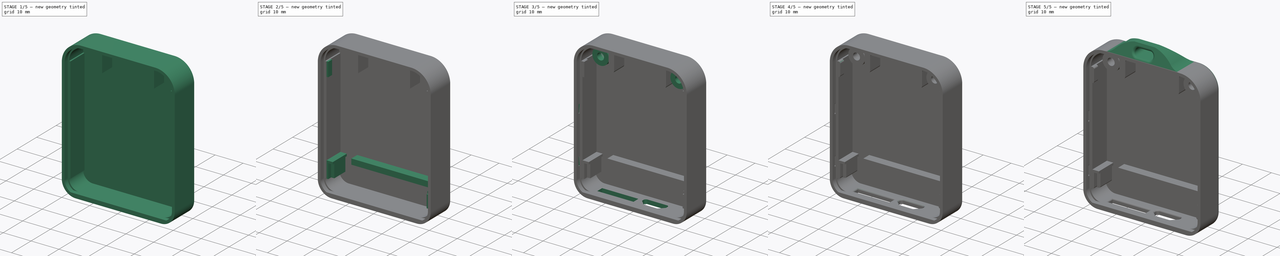
[diagram: build sequence overview — one tinted view per stage of 5, left to right]
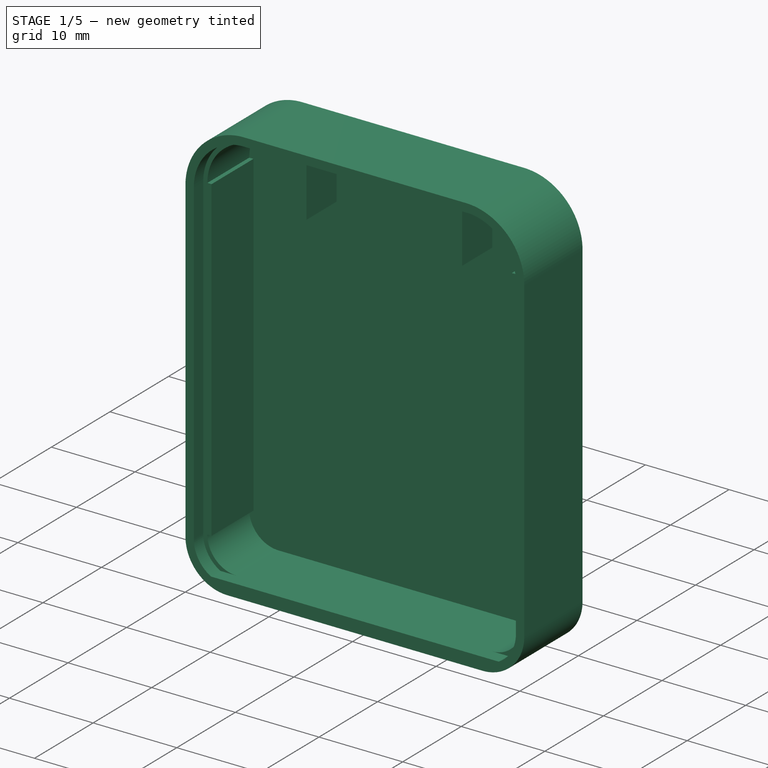
[diagram: stage 1 of 5 — iso view after this stage's code; geometry added in this stage tinted green]
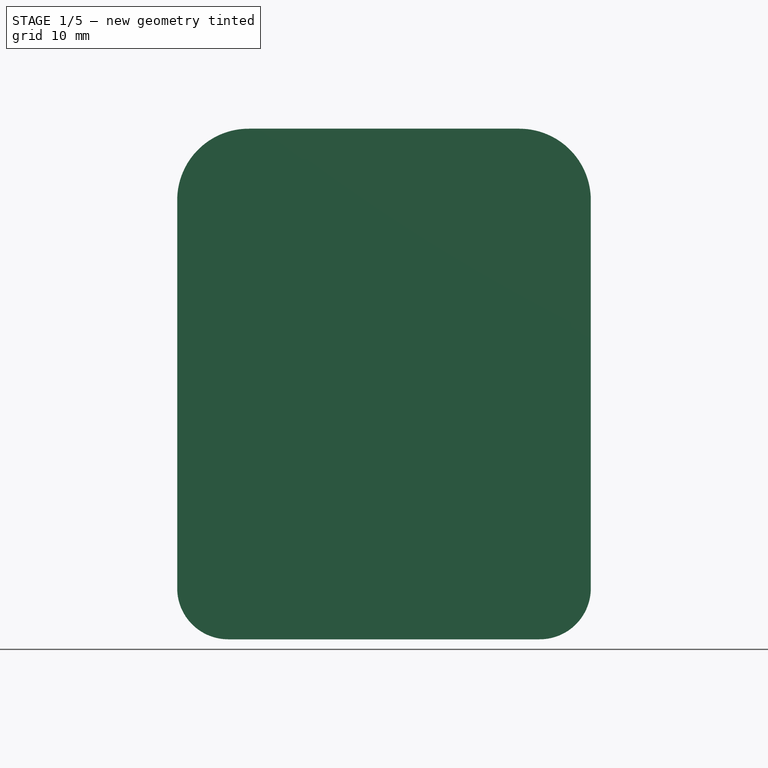
[diagram: stage 1 of 5 — front view after this stage's code; geometry added in this stage tinted green]
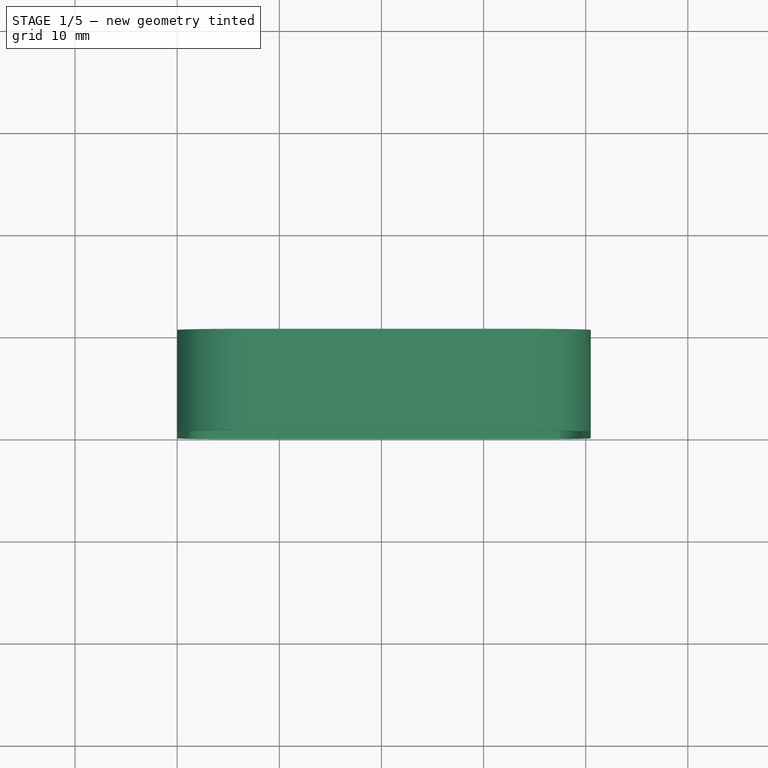
[diagram: stage 1 of 5 — top view after this stage's code; geometry added in this stage tinted green]
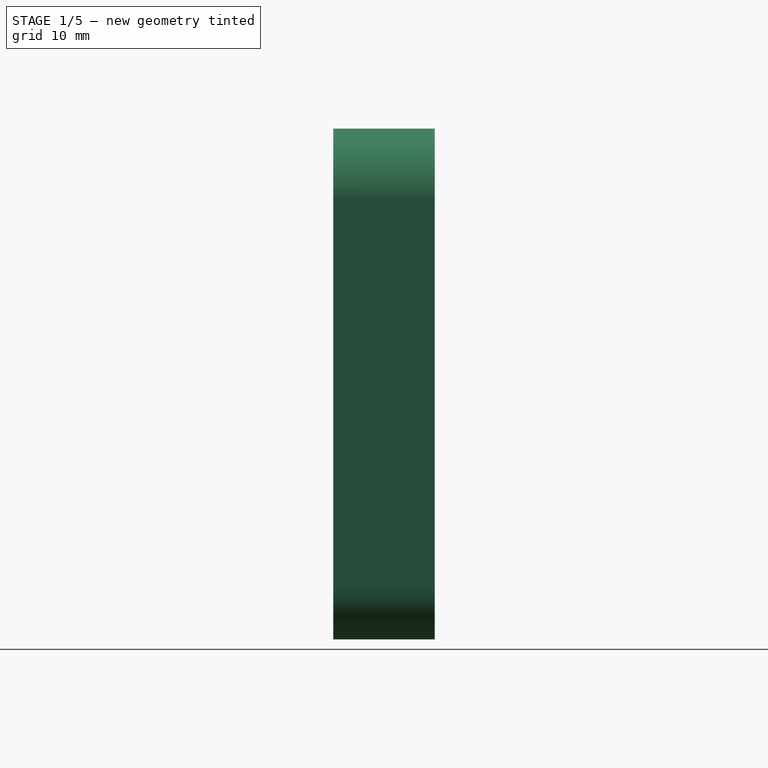
[diagram: stage 1 of 5 — right view after this stage's code; geometry added in this stage tinted green]
FCSTD DOCUMENT  (FreeCAD 0.18R0.18.4)
Label: Bottom_case
Comment: CERN Open Hardware Licence Version 2 - Weakly Reciprocal
License: Other
LicenseURL: https://ohwr.org/cern_ohl_w_v2.pdf
objects: Sketcher::SketchObject×27, PartDesign::Pad×15, PartDesign::Pocket×12, PartDesign::Fillet×11, PartDesign::Body×1
note: 93 computed .brp shape members not serialized (recipe doc carries the construction recipe); baked Part::Feature solids carry a one-line shape summary decoded from their .brp

FEATURE [Sketcher::SketchObject] Sketch
  MapMode = 5
  Placement = pos=(0,0,0) rot=(1,0,0;1.5708rad)
  sketch-geometry (8):
    g0: LineSegment StartX=5 StartY=0 StartZ=0 EndX=35.5 EndY=0 EndZ=0
    g1: LineSegment StartX=40.5 StartY=5 StartZ=0 EndX=40.5 EndY=43 EndZ=0
    g2: LineSegment StartX=33.5 StartY=50 StartZ=0 EndX=7 EndY=50 EndZ=0
    g3: LineSegment StartX=0 StartY=43 StartZ=0 EndX=0 EndY=5 EndZ=0
    g4: ArcOfCircle CenterX=7 CenterY=43 CenterZ=0 NormalX=0 NormalY=0 NormalZ=1 AngleXU=0 Radius=7 StartAngle=1.5708 EndAngle=3.14159
    g5: ArcOfCircle CenterX=33.5 CenterY=43 CenterZ=0 NormalX=0 NormalY=0 NormalZ=1 AngleXU=0 Radius=7 StartAngle=0 EndAngle=1.5708
    g6: ArcOfCircle CenterX=35.5 CenterY=5 CenterZ=0 NormalX=0 NormalY=0 NormalZ=1 AngleXU=0 Radius=5 StartAngle=4.71239 EndAngle=6.28319
    g7: ArcOfCircle CenterX=5 CenterY=5 CenterZ=0 NormalX=0 NormalY=0 NormalZ=1 AngleXU=0 Radius=5 StartAngle=3.14159 EndAngle=4.71239
  constraints (20):
    c: Horizontal(g0)
    c: Horizontal(g2)
    c: Vertical(g1)
    c: Vertical(g3)
    c: Tangent(g3,g4) = -1.5708
    c: Tangent(g2,g4) = -1.5708
    c: Tangent(g2,g5) = -1.5708
    c: Tangent(g1,g5) = -1.5708
    c: Tangent(g1,g6) = -1.5708
    c: Tangent(g0,g6) = -1.5708
    c: Tangent(g0,g7) = -1.5708
    c: Tangent(g3,g7) = -1.5708
    c: DistanceY(g0,g2) = 50
    c: DistanceX(g3,g1) = 40.5
    c: Radius(g4) = 7
    c: Radius(g5) = 7
    c: Radius(g7) = 5
    c: Radius(g6) = 5
    c: DistanceY(g-1,g0) = 0
    c: DistanceX(g-1,g3) = 0
FEATURE [PartDesign::Pad] Pad
  Length = 9.95
  Length2 = 100
  Placement = pos=(0,0,0) rot=(1,0,0;1.5708rad)
  Profile = -> Sketch
  Type = 0
FEATURE [Sketcher::SketchObject] Sketch001
  MapMode = 5
  Placement = pos=(0,-9.95,2.2e-15) rot=(1,0,0;1.5708rad)
  Support = -> [Pad]
  sketch-geometry (8):
    g0: LineSegment StartX=7 StartY=49 StartZ=0 EndX=33.5 EndY=49 EndZ=0
    g1: LineSegment StartX=39.5 StartY=43 StartZ=0 EndX=39.5 EndY=5 EndZ=0
    g2: LineSegment StartX=1 StartY=5 StartZ=0 EndX=1 EndY=43 EndZ=0
    g3: ArcOfCircle CenterX=7 CenterY=43 CenterZ=0 NormalX=0 NormalY=0 NormalZ=1 AngleXU=0 Radius=6 StartAngle=1.5708 EndAngle=3.14159
    g4: ArcOfCircle CenterX=33.5 CenterY=43 CenterZ=0 NormalX=0 NormalY=0 NormalZ=1 AngleXU=0 Radius=6 StartAngle=0 EndAngle=1.5708
    g5: ArcOfCircle CenterX=35.5 CenterY=5 CenterZ=0 NormalX=0 NormalY=0 NormalZ=1 AngleXU=0 Radius=4 StartAngle=5.21775 EndAngle=6.28319
    g6: ArcOfCircle CenterX=5 CenterY=5 CenterZ=0 NormalX=0 NormalY=0 NormalZ=1 AngleXU=0 Radius=4 StartAngle=3.14159 EndAngle=4.20703
    g7: LineSegment StartX=3.06351 StartY=1.5 StartZ=0 EndX=37.4365 EndY=1.5 EndZ=0
  constraints (19):
    c: Horizontal(g0)
    c: Vertical(g1)
    c: Vertical(g2)
    c: Tangent(g2,g3) = 1.5708
    c: Tangent(g0,g3) = 1.5708
    c: Tangent(g0,g4) = 1.5708
    c: Tangent(g1,g4) = 1.5708
    c: Tangent(g1,g5) = 1.5708
    c: Tangent(g2,g6) = 1.5708
    c: Radius(g6) = 4
    c: Radius(g5) = 4
    c: Radius(g3) = 6
    c: Radius(g4) = 6
    c: DistanceX(g-1,g2) = 1
    c: DistanceX(g2,g1) = 38.5
    c: Horizontal(g7)
    c: Coincident(g6,g7)
    c: Coincident(g7,g5)
    c: DistanceY(g-1,g6) = 1.5
FEATURE [PartDesign::Pocket] Pocket
  BaseFeature = -> Pad
  Length = 1.6
  Length2 = 100
  Placement = pos=(0,0,0) rot=(1,0,0;1.5708rad)
  Profile = -> Sketch001
  Type = 0
FEATURE [Sketcher::SketchObject] Sketch002
  ExternalGeometry = -> [Pocket]
  MapMode = 5
  Placement = pos=(0,-8.35,3.8e-15) rot=(1,0,0;1.5708rad)
  Support = -> [Pocket]
  sketch-geometry (8):
    g0: LineSegment StartX=1.5 StartY=43 StartZ=0 EndX=1.5 EndY=5 EndZ=0
    g1: LineSegment StartX=39 StartY=43 StartZ=0 EndX=39 EndY=5 EndZ=0
    g2: LineSegment StartX=7 StartY=48.5 StartZ=0 EndX=33.5 EndY=48.5 EndZ=0
    g3: LineSegment StartX=5 StartY=1.5 StartZ=0 EndX=35.5 EndY=1.5 EndZ=0
    g4: ArcOfCircle CenterX=5 CenterY=5 CenterZ=0 NormalX=0 NormalY=0 NormalZ=1 AngleXU=0 Radius=3.5 StartAngle=3.14159 EndAngle=4.71239
    g5: ArcOfCircle CenterX=35.5 CenterY=5 CenterZ=0 NormalX=0 NormalY=0 NormalZ=1 AngleXU=0 Radius=3.5 StartAngle=4.71239 EndAngle=6.28319
    g6: ArcOfCircle CenterX=7 CenterY=43 CenterZ=0 NormalX=0 NormalY=0 NormalZ=1 AngleXU=0 Radius=5.5 StartAngle=1.5708 EndAngle=3.14159
    g7: ArcOfCircle CenterX=33.5 CenterY=43 CenterZ=0 NormalX=0 NormalY=0 NormalZ=1 AngleXU=0 Radius=5.5 StartAngle=1e-16 EndAngle=1.5708
  constraints (20):
    c: Vertical(g0)
    c: Vertical(g1)
    c: Horizontal(g2)
    c: Horizontal(g3)
    c: Tangent(g0,g4) = -1.5708
    c: Tangent(g3,g4) = -1.5708
    c: Tangent(g1,g5) = 1.5708
    c: Tangent(g3,g5) = -1.5708
    c: Tangent(g0,g6) = -1.5708
    c: Tangent(g2,g6) = 1.5708
    c: Tangent(g1,g7) = 1.5708
    c: Tangent(g2,g7) = 1.5708
    c: Radius(g6) = 5.5
    c: Radius(g7) = 5.5
    c: Radius(g4) = 3.5
    c: Radius(g5) = 3.5
    c: DistanceX(g-1,g0) = 1.5
    c: DistanceY(g-1,g3) = 1.5
    c: DistanceX(g1,g-4) = 0.5
    c: DistanceY(g2,g-3) = 0.5
FEATURE [PartDesign::Pocket] Pocket001
  BaseFeature = -> Pocket
  Length = 7.15
  Length2 = 100
  Placement = pos=(0,0,0) rot=(1,0,0;1.5708rad)
  Profile = -> Sketch002
  Type = 0
FEATURE [Sketcher::SketchObject] Sketch003
  ExternalGeometry = -> [Pocket001]
  MapMode = 5
  Placement = pos=(0,-8.35,3.8e-15) rot=(1,0,0;1.5708rad)
  Support = -> [Pocket001]
  sketch-geometry (4):
    g0: LineSegment StartX=9.45 StartY=48.5 StartZ=0 EndX=9.45 EndY=49 EndZ=0
    g1: LineSegment StartX=31.05 StartY=48.5 StartZ=0 EndX=31.05 EndY=49 EndZ=0
    g2: LineSegment StartX=9.45 StartY=49 StartZ=0 EndX=31.05 EndY=49 EndZ=0
    g3: LineSegment StartX=9.45 StartY=48.5 StartZ=0 EndX=31.05 EndY=48.5 EndZ=0
  constraints (11):
    c: Vertical(g0)
    c: Vertical(g1)
    c: Coincident(g2,g0)
    c: Coincident(g2,g1)
    c: Horizontal(g2)
    c: Coincident(g3,g0)
    c: Coincident(g3,g1)
    c: Horizontal(g3)
    c: Distance(g0) = 0.5
    c: Distance(g3) = 21.6
    c: DistanceX(g-3,g0) = 2.45
FEATURE [PartDesign::Pocket] Pocket002
  BaseFeature = -> Pocket001
  Length = 7.15
  Length2 = 100
  Placement = pos=(0,0,0) rot=(1,0,0;1.5708rad)
  Profile = -> Sketch003
  Type = 0
FEATURE [Sketcher::SketchObject] Sketch004
  ExternalGeometry = -> [Pocket002]
  MapMode = 5
  Placement = pos=(0,-1.2,0) rot=(1,0,0;1.5708rad)
  Support = -> [Pocket002]
  sketch-geometry (16):
    g0: LineSegment StartX=9.45 StartY=49 StartZ=0 EndX=9.45 EndY=47 EndZ=0
    g1: LineSegment StartX=12.63 StartY=47 StartZ=0 EndX=12.63 EndY=48 EndZ=0
    g2: LineSegment StartX=12.63 StartY=48 StartZ=0 EndX=27.87 EndY=48 EndZ=0
    g3: LineSegment StartX=27.87 StartY=48 StartZ=0 EndX=27.87 EndY=47 EndZ=0
    g4: LineSegment StartX=31.05 StartY=47 StartZ=0 EndX=31.05 EndY=49 EndZ=0
    g5: LineSegment StartX=9.45 StartY=49 StartZ=0 EndX=31.05 EndY=49 EndZ=0
    g6: LineSegment StartX=11.95 StartY=47 StartZ=0 EndX=11.95 EndY=41.05 EndZ=0
    g7: LineSegment StartX=11.95 StartY=41.05 StartZ=0 EndX=9.95 EndY=41.05 EndZ=0
    g8: LineSegment StartX=9.95 StartY=41.05 StartZ=0 EndX=9.95 EndY=47 EndZ=0
    g9: LineSegment StartX=28.55 StartY=47 StartZ=0 EndX=28.55 EndY=41.05 EndZ=0
    g10: LineSegment StartX=28.55 StartY=41.05 StartZ=0 EndX=30.55 EndY=41.05 EndZ=0
    g11: LineSegment StartX=30.55 StartY=41.05 StartZ=0 EndX=30.55 EndY=47 EndZ=0
    g12: LineSegment StartX=9.45 StartY=47 StartZ=0 EndX=9.95 EndY=47 EndZ=0
    g13: LineSegment StartX=11.95 StartY=47 StartZ=0 EndX=12.63 EndY=47 EndZ=0
    g14: LineSegment StartX=27.87 StartY=47 StartZ=0 EndX=28.55 EndY=47 EndZ=0
    g15: LineSegment StartX=30.55 StartY=47 StartZ=0 EndX=31.05 EndY=47 EndZ=0
  constraints (38):
    c: Coincident(g-4,g0)
    c: Vertical(g0)
    c: Vertical(g1)
    c: Coincident(g1,g2)
    c: Horizontal(g2)
    c: Coincident(g2,g3)
    c: Vertical(g3)
    c: Coincident(g4,g-5)
    c: DistanceY(g0,g0) = 2
    c: DistanceY(g1,g1) = 1
    c: Vertical(g4)
    c: Distance(g4) = 2
    c: Coincident(g5,g0)
    c: Coincident(g5,g4)
    c: Coincident(g6,g7)
    c: Coincident(g7,g8)
    c: Horizontal(g7)
    c: Vertical(g6)
    c: Vertical(g8)
    c: Coincident(g9,g10)
    c: Coincident(g10,g11)
    c: Horizontal(g10)
    c: Vertical(g9)
    c: Vertical(g11)
    c: DistanceX(g0,g8) = 0.5
    c: DistanceX(g7,g7) = 2
    c: DistanceY(g8,g8) = 5.95
    c: DistanceY(g9,g9) = 5.95
    c: DistanceX(g10,g10) = 2
    c: DistanceX(g11,g4) = 0.5
    c: Coincident(g12,g0)
    c: Horizontal(g12)
    c: Coincident(g13,g1)
    c: Horizontal(g13)
    c: Coincident(g14,g3)
    c: Horizontal(g14)
    c: Coincident(g15,g4)
    c: Horizontal(g15)
FEATURE [PartDesign::Pad] Pad001
  BaseFeature = -> Pocket002
  Length = 5.15
  Length2 = 100
  Placement = pos=(0,0,0) rot=(1,0,0;1.5708rad)
  Profile = -> Sketch004
  Type = 0
FEATURE [Sketcher::SketchObject] Sketch005
  ExternalGeometry = -> [Pad001]
  MapMode = 5
  Placement = pos=(0,-1.2,9e-16) rot=(1,0,0;1.5708rad)
  Support = -> [Pad001]
  sketch-geometry (8):
    g0: LineSegment StartX=1.5 StartY=43 StartZ=0 EndX=2 EndY=43 EndZ=0
    g1: LineSegment StartX=2 StartY=43 StartZ=0 EndX=2 EndY=5 EndZ=0
    g2: LineSegment StartX=2 StartY=5 StartZ=0 EndX=1.5 EndY=5 EndZ=0
    g3: LineSegment StartX=39 StartY=43 StartZ=0 EndX=38.5 EndY=43 EndZ=0
    g4: LineSegment StartX=38.5 StartY=43 StartZ=0 EndX=38.5 EndY=5 EndZ=0
    g5: LineSegment StartX=38.5 StartY=5 StartZ=0 EndX=39 EndY=5 EndZ=0
    g6: LineSegment StartX=1.5 StartY=43 StartZ=0 EndX=1.5 EndY=5 EndZ=0
    g7: LineSegment StartX=39 StartY=5 StartZ=0 EndX=39 EndY=43 EndZ=0
  constraints (16):
    c: Horizontal(g0)
    c: Coincident(g0,g1)
    c: Vertical(g1)
    c: Coincident(g1,g2)
    c: Horizontal(g2)
    c: Horizontal(g3)
    c: Coincident(g3,g4)
    c: Vertical(g4)
    c: Coincident(g4,g5)
    c: Horizontal(g5)
    c: DistanceX(g3,g3) = 0.5
    c: DistanceX(g2,g2) = 0.5
    c: Coincident(g6,g0)
    c: Coincident(g6,g2)
    c: Coincident(g7,g5)
    c: Coincident(g7,g3)
FEATURE [PartDesign::Pad] Pad002
  BaseFeature = -> Pad001
  Length = 7.15
  Length2 = 100
  Placement = pos=(0,0,0) rot=(1,0,0;1.5708rad)
  Profile = -> Sketch005
  Type = 0
FEATURE [Sketcher::SketchObject] Sketch006
  ExternalGeometry = -> [Pad002]
  MapMode = 5
  Placement = pos=(0,-1.2,9e-16) rot=(1,0,0;1.5708rad)
  Support = -> [Pad002]
  sketch-geometry (8):
    g0: LineSegment StartX=9.45 StartY=48.5 StartZ=0 EndX=7 EndY=48.5 EndZ=0
    g1: LineSegment StartX=7 StartY=48.5 StartZ=0 EndX=7 EndY=47.5 EndZ=0
    g2: LineSegment StartX=7 StartY=47.5 StartZ=0 EndX=9.45 EndY=47.5 EndZ=0
    g3: LineSegment StartX=9.45 StartY=47.5 StartZ=0 EndX=9.45 EndY=48.5 EndZ=0
    g4: LineSegment StartX=31.05 StartY=48.5 StartZ=0 EndX=33.5 EndY=48.5 EndZ=0
    g5: LineSegment StartX=33.5 StartY=48.5 StartZ=0 EndX=33.5 EndY=47.5 EndZ=0
    g6: LineSegment StartX=33.5 StartY=47.5 StartZ=0 EndX=31.05 EndY=47.5 EndZ=0
    g7: LineSegment StartX=31.05 StartY=47.5 StartZ=0 EndX=31.05 EndY=48.5 EndZ=0
  constraints (22):
    c: Coincident(g0,g1)
    c: Coincident(g1,g2)
    c: Coincident(g2,g3)
    c: Coincident(g3,g0)
    c: Horizontal(g0)
    c: Horizontal(g2)
    c: Vertical(g1)
    c: Vertical(g3)
    c: Coincident(g0,g-3)
    c: Coincident(g4,g5)
    c: Coincident(g5,g6)
    c: Coincident(g6,g7)
    c: Coincident(g7,g4)
    c: Horizontal(g4)
    c: Horizontal(g6)
    c: Vertical(g5)
    c: Vertical(g7)
    c: Coincident(g4,g-4)
    c: DistanceX(g6,g6) = 2.45
    c: DistanceX(g2,g2) = 2.45
    c: DistanceY(g1,g1) = 1
    c: DistanceY(g5,g5) = 1
FEATURE [PartDesign::Pad] Pad003
  BaseFeature = -> Pad002
  Length = 6.15
  Length2 = 100
  Placement = pos=(0,0,0) rot=(1,0,0;1.5708rad)
  Profile = -> Sketch006
  Type = 0
FEATURE [Sketcher::SketchObject] Sketch007
  ExternalGeometry = -> [Pad003]
  MapMode = 5
  Placement = pos=(38.5,0,0) rot=(0.707107,0,-0.707107;3.14159rad)
  Support = -> [Pad003]
  sketch-geometry (4):
    g0: LineSegment StartX=-43 StartY=1.2 StartZ=0 EndX=-38 EndY=1.2 EndZ=0
    g1: LineSegment StartX=-38 StartY=1.2 StartZ=0 EndX=-38 EndY=8.35 EndZ=0
    g2: LineSegment StartX=-38 StartY=8.35 StartZ=0 EndX=-43 EndY=8.35 EndZ=0
    g3: LineSegment StartX=-43 StartY=8.35 StartZ=0 EndX=-43 EndY=1.2 EndZ=0
  constraints (11):
    c: Coincident(g0,g1)
    c: Coincident(g1,g2)
    c: Coincident(g2,g3)
    c: Coincident(g3,g0)
    c: Horizontal(g0)
    c: Horizontal(g2)
    c: Vertical(g1)
    c: Vertical(g3)
    c: Coincident(g0,g-5)
    c: PointOnObject(g1,g-4)
    c: DistanceX(g2,g2) = 5
FEATURE [PartDesign::Pad] Pad004
  BaseFeature = -> Pad003
  Length = 0.6
  Length2 = 100
  Placement = pos=(0,0,0) rot=(1,0,0;1.5708rad)
  Profile = -> Sketch007
  Type = 0
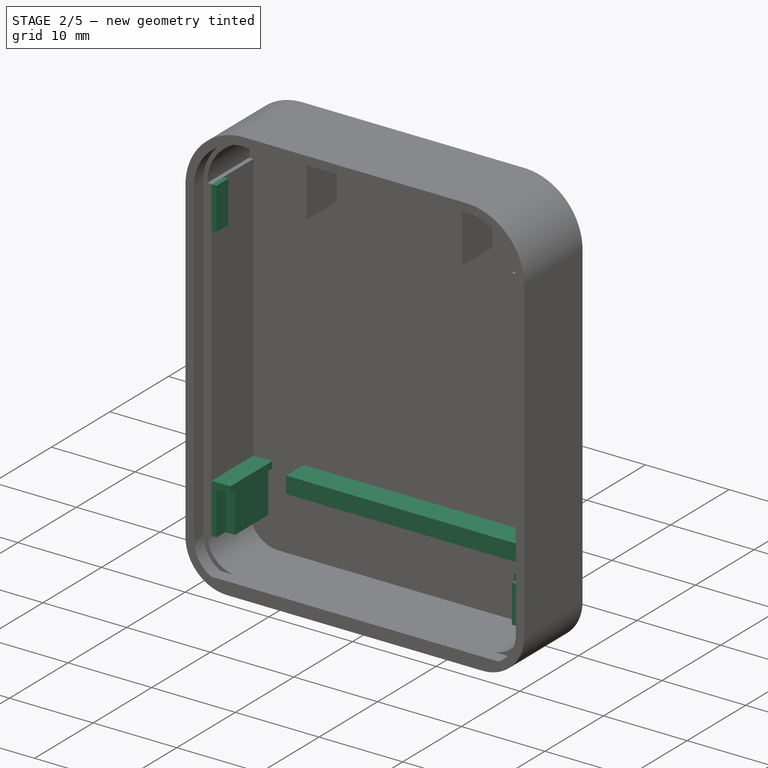
[diagram: stage 2 of 5 — iso view after this stage's code; geometry added in this stage tinted green]
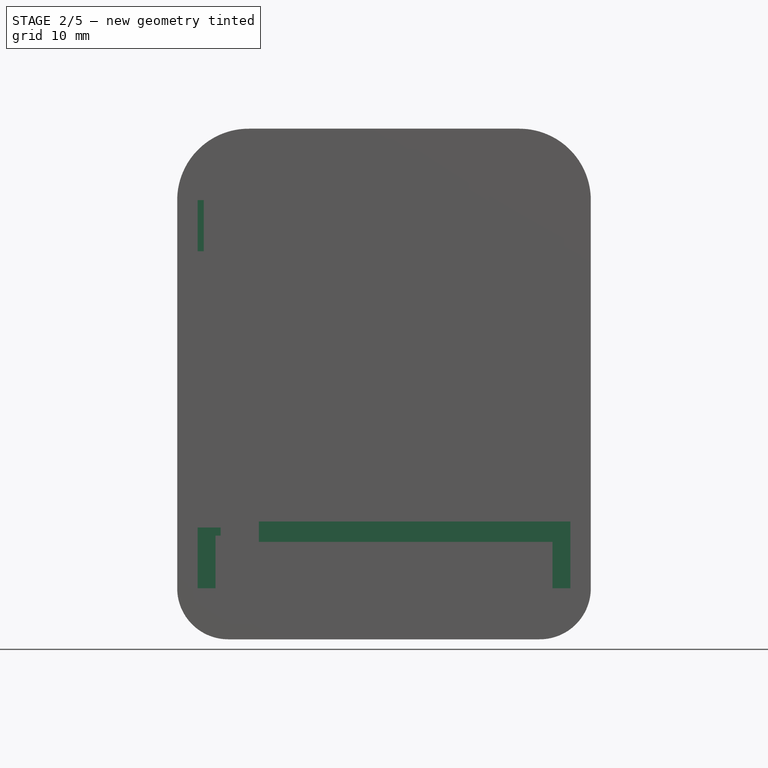
[diagram: stage 2 of 5 — front view after this stage's code; geometry added in this stage tinted green]
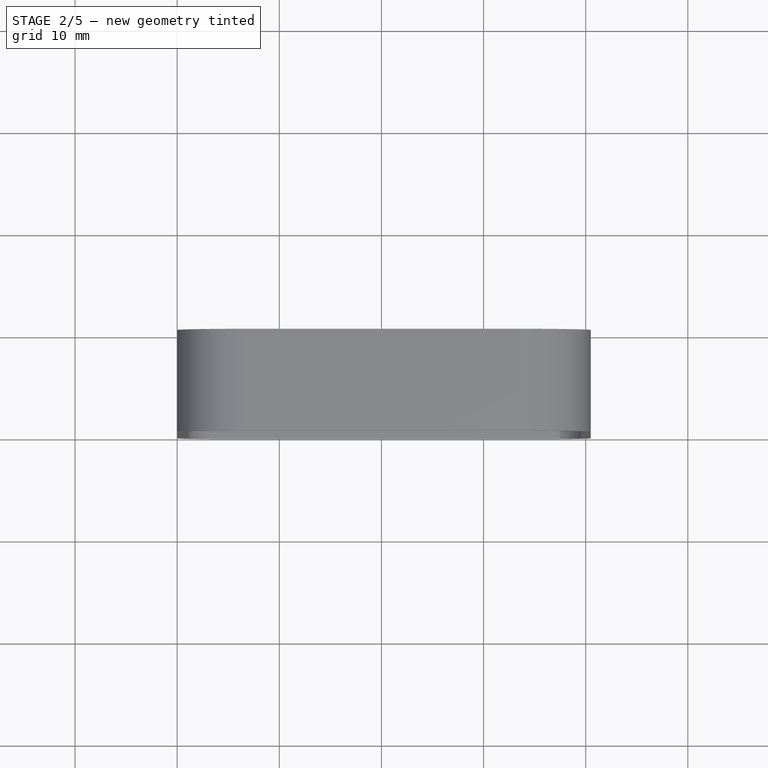
[diagram: stage 2 of 5 — top view after this stage's code; geometry added in this stage tinted green]
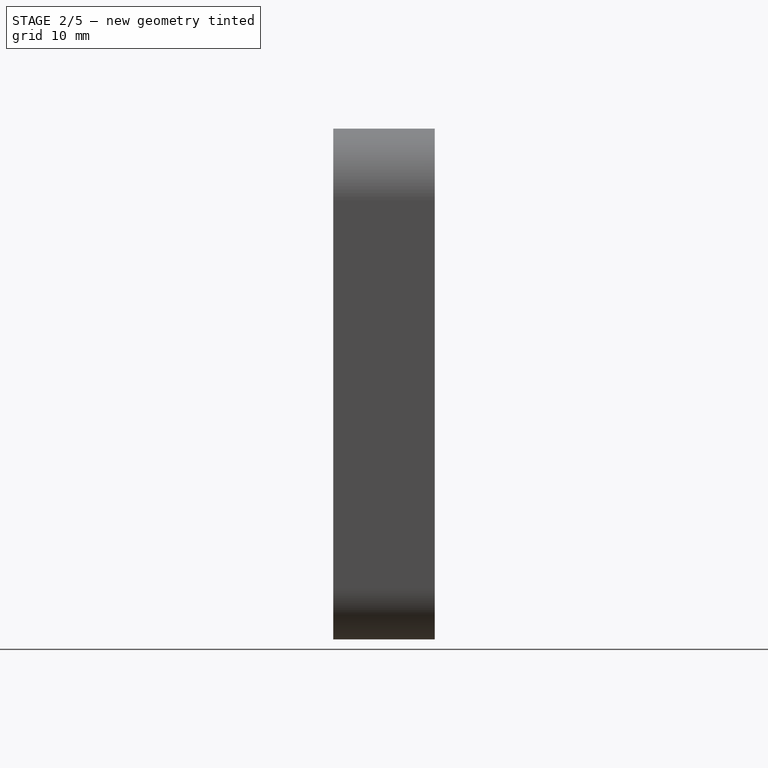
[diagram: stage 2 of 5 — right view after this stage's code; geometry added in this stage tinted green]
FEATURE [Sketcher::SketchObject] Sketch008
  ExternalGeometry = -> [Pad004]
  MapMode = 5
  Placement = pos=(2,0,0) rot=(0.707107,0,0.707107;3.14159rad)
  Support = -> [Pad004]
  sketch-geometry (4):
    g0: LineSegment StartX=43 StartY=8.35 StartZ=0 EndX=38 EndY=8.35 EndZ=0
    g1: LineSegment StartX=38 StartY=8.35 StartZ=0 EndX=38 EndY=6.35 EndZ=0
    g2: LineSegment StartX=38 StartY=6.35 StartZ=0 EndX=43 EndY=6.35 EndZ=0
    g3: LineSegment StartX=43 StartY=6.35 StartZ=0 EndX=43 EndY=8.35 EndZ=0
  constraints (11):
    c: Coincident(g0,g1)
    c: Coincident(g1,g2)
    c: Coincident(g2,g3)
    c: Coincident(g3,g0)
    c: Horizontal(g0)
    c: Horizontal(g2)
    c: Vertical(g1)
    c: Vertical(g3)
    c: Coincident(g0,g-4)
    c: DistanceX(g2,g2) = 5
    c: DistanceY(g1,g1) = 2
FEATURE [PartDesign::Pad] Pad005
  BaseFeature = -> Pad004
  Length = 0.6
  Length2 = 100
  Placement = pos=(0,0,0) rot=(1,0,0;1.5708rad)
  Profile = -> Sketch008
  Type = 0
FEATURE [Sketcher::SketchObject] Sketch009
  ExternalGeometry = -> [Pad005]
  MapMode = 5
  Placement = pos=(2,0,0) rot=(0.707107,0,0.707107;3.14159rad)
  Support = -> [Pad005]
  sketch-geometry (4):
    g0: LineSegment StartX=5 StartY=1.2 StartZ=0 EndX=10.15 EndY=1.2 EndZ=0
    g1: LineSegment StartX=10.15 StartY=1.2 StartZ=0 EndX=10.15 EndY=6.86 EndZ=0
    g2: LineSegment StartX=10.15 StartY=6.86 StartZ=0 EndX=5 EndY=6.86 EndZ=0
    g3: LineSegment StartX=5 StartY=6.86 StartZ=0 EndX=5 EndY=1.2 EndZ=0
  constraints (11):
    c: Coincident(g0,g1)
    c: Coincident(g1,g2)
    c: Coincident(g2,g3)
    c: Coincident(g3,g0)
    c: Horizontal(g0)
    c: Horizontal(g2)
    c: Vertical(g1)
    c: Vertical(g3)
    c: Coincident(g0,g-4)
    c: DistanceY(g3,g3) = 5.66
    c: DistanceX(g2,g2) = 5.15
FEATURE [PartDesign::Pad] Pad006
  BaseFeature = -> Pad005
  Length = 1.75
  Length2 = 100
  Placement = pos=(0,0,0) rot=(1,0,0;1.5708rad)
  Profile = -> Sketch009
  Type = 0
FEATURE [Sketcher::SketchObject] Sketch010
  ExternalGeometry = -> [Pad006]
  MapMode = 5
  Placement = pos=(2,0,0) rot=(0.707107,0,0.707107;3.14159rad)
  Support = -> [Pad006]
  sketch-geometry (4):
    g0: LineSegment StartX=10.15 StartY=6.86 StartZ=0 EndX=5 EndY=6.86 EndZ=0
    g1: LineSegment StartX=5 StartY=6.86 StartZ=0 EndX=5 EndY=8.35 EndZ=0
    g2: LineSegment StartX=5 StartY=8.35 StartZ=0 EndX=10.15 EndY=8.35 EndZ=0
    g3: LineSegment StartX=10.15 StartY=8.35 StartZ=0 EndX=10.15 EndY=6.86 EndZ=0
  constraints (10):
    c: Coincident(g0,g1)
    c: Coincident(g1,g2)
    c: Coincident(g2,g3)
    c: Coincident(g3,g0)
    c: Horizontal(g0)
    c: Horizontal(g2)
    c: Vertical(g1)
    c: Vertical(g3)
    c: Coincident(g0,g-3)
    c: Coincident(g1,g-4)
FEATURE [PartDesign::Pad] Pad007
  BaseFeature = -> Pad006
  Length = 0.6
  Length2 = 100
  Placement = pos=(0,0,0) rot=(1,0,0;1.5708rad)
  Profile = -> Sketch010
  Type = 0
FEATURE [Sketcher::SketchObject] Sketch011
  ExternalGeometry = -> [Pad007]
  MapMode = 5
  Placement = pos=(2,0,0) rot=(0.707107,0,0.707107;3.14159rad)
  Support = -> [Pad007]
  sketch-geometry (4):
    g0: LineSegment StartX=10.15 StartY=1.2 StartZ=0 EndX=10.95 EndY=1.2 EndZ=0
    g1: LineSegment StartX=10.95 StartY=1.2 StartZ=0 EndX=10.95 EndY=8.35 EndZ=0
    g2: LineSegment StartX=10.95 StartY=8.35 StartZ=0 EndX=10.15 EndY=8.35 EndZ=0
    g3: LineSegment StartX=10.15 StartY=8.35 StartZ=0 EndX=10.15 EndY=1.2 EndZ=0
  constraints (11):
    c: Coincident(g0,g1)
    c: Coincident(g1,g2)
    c: Coincident(g2,g3)
    c: Coincident(g3,g0)
    c: Horizontal(g0)
    c: Horizontal(g2)
    c: Vertical(g1)
    c: Vertical(g3)
    c: Coincident(g0,g-4)
    c: DistanceX(g2,g2) = 0.8
    c: DistanceY(g1,g1) = 7.15
FEATURE [PartDesign::Pad] Pad008
  BaseFeature = -> Pad007
  Length = 2.25
  Length2 = 100
  Placement = pos=(0,0,0) rot=(1,0,0;1.5708rad)
  Profile = -> Sketch011
  Type = 0
FEATURE [Sketcher::SketchObject] Sketch012
  ExternalGeometry = -> [Pad008]
  MapMode = 5
  Placement = pos=(38.5,0,0) rot=(0.707107,0,-0.707107;3.14159rad)
  Support = -> [Pad008]
  sketch-geometry (4):
    g0: LineSegment StartX=-5 StartY=1.2 StartZ=0 EndX=-9.54 EndY=1.2 EndZ=0
    g1: LineSegment StartX=-9.54 StartY=1.2 StartZ=0 EndX=-9.54 EndY=6.35 EndZ=0
    g2: LineSegment StartX=-9.54 StartY=6.35 StartZ=0 EndX=-5 EndY=6.35 EndZ=0
    g3: LineSegment StartX=-5 StartY=6.35 StartZ=0 EndX=-5 EndY=1.2 EndZ=0
  constraints (11):
    c: Coincident(g0,g1)
    c: Coincident(g1,g2)
    c: Coincident(g2,g3)
    c: Coincident(g3,g0)
    c: Horizontal(g0)
    c: Horizontal(g2)
    c: Vertical(g1)
    c: Vertical(g3)
    c: Coincident(g0,g-4)
    c: DistanceX(g2,g2) = 4.54
    c: DistanceY(g1,g1) = 5.15
FEATURE [PartDesign::Pad] Pad009
  BaseFeature = -> Pad008
  Length = 1.75
  Length2 = 100
  Placement = pos=(0,0,0) rot=(1,0,0;1.5708rad)
  Profile = -> Sketch012
  Type = 0
FEATURE [Sketcher::SketchObject] Sketch013
  ExternalGeometry = -> [Pad009]
  MapMode = 5
  Placement = pos=(38.5,0,0) rot=(0.707107,0,-0.707107;3.14159rad)
  Support = -> [Pad009]
  sketch-geometry (4):
    g0: LineSegment StartX=-9.54 StartY=6.35 StartZ=0 EndX=-5 EndY=6.35 EndZ=0
    g1: LineSegment StartX=-5 StartY=6.35 StartZ=0 EndX=-5 EndY=8.35 EndZ=0
    g2: LineSegment StartX=-5 StartY=8.35 StartZ=0 EndX=-9.54 EndY=8.35 EndZ=0
    g3: LineSegment StartX=-9.54 StartY=8.35 StartZ=0 EndX=-9.54 EndY=6.35 EndZ=0
  constraints (10):
    c: Coincident(g0,g1)
    c: Coincident(g1,g2)
    c: Coincident(g2,g3)
    c: Coincident(g3,g0)
    c: Horizontal(g0)
    c: Horizontal(g2)
    c: Vertical(g1)
    c: Vertical(g3)
    c: Coincident(g0,g-4)
    c: Coincident(g1,g-3)
FEATURE [PartDesign::Pad] Pad010
  BaseFeature = -> Pad009
  Length = 0.6
  Length2 = 100
  Placement = pos=(0,0,0) rot=(1,0,0;1.5708rad)
  Profile = -> Sketch013
  Type = 0
FEATURE [Sketcher::SketchObject] Sketch014
  ExternalGeometry = -> [Pad010]
  MapMode = 5
  Placement = pos=(0,-1.2,9e-16) rot=(1,0,0;1.5708rad)
  Support = -> [Pad010]
  sketch-geometry (4):
    g0: LineSegment StartX=38.5 StartY=9.54 StartZ=0 EndX=8 EndY=9.54 EndZ=0
    g1: LineSegment StartX=8 StartY=9.54 StartZ=0 EndX=8 EndY=11.54 EndZ=0
    g2: LineSegment StartX=8 StartY=11.54 StartZ=0 EndX=38.5 EndY=11.54 EndZ=0
    g3: LineSegment StartX=38.5 StartY=11.54 StartZ=0 EndX=38.5 EndY=9.54 EndZ=0
  constraints (11):
    c: Coincident(g0,g1)
    c: Coincident(g1,g2)
    c: Coincident(g2,g3)
    c: Coincident(g3,g0)
    c: Horizontal(g0)
    c: Horizontal(g2)
    c: Vertical(g1)
    c: Vertical(g3)
    c: Coincident(g0,g-4)
    c: DistanceX(g0,g0) = 30.5
    c: DistanceY(g1,g1) = 2
FEATURE [PartDesign::Pad] Pad011
  BaseFeature = -> Pad010
  Length = 3
  Length2 = 100
  Placement = pos=(0,0,0) rot=(1,0,0;1.5708rad)
  Profile = -> Sketch014
  Type = 0
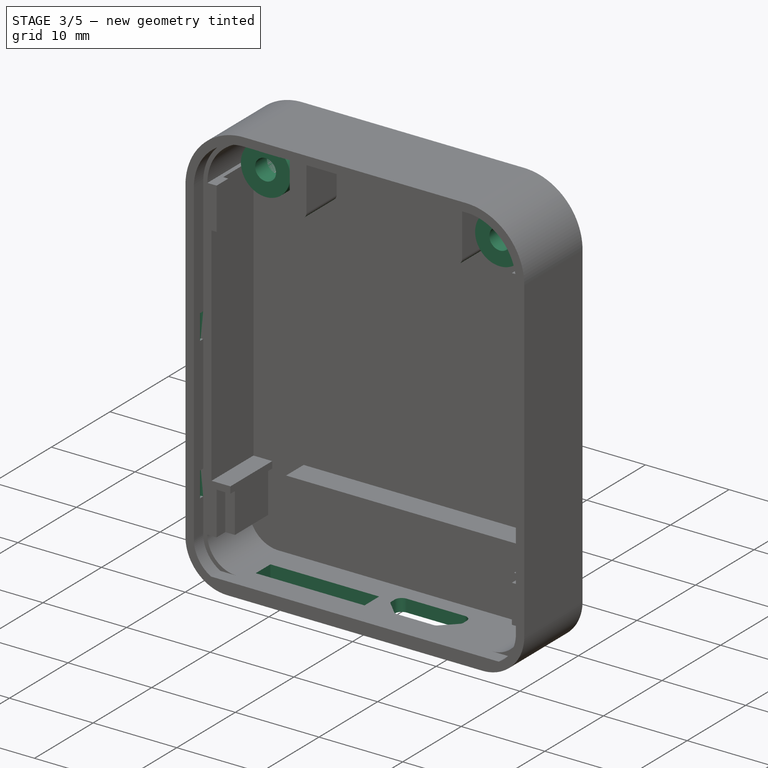
[diagram: stage 3 of 5 — iso view after this stage's code; geometry added in this stage tinted green]
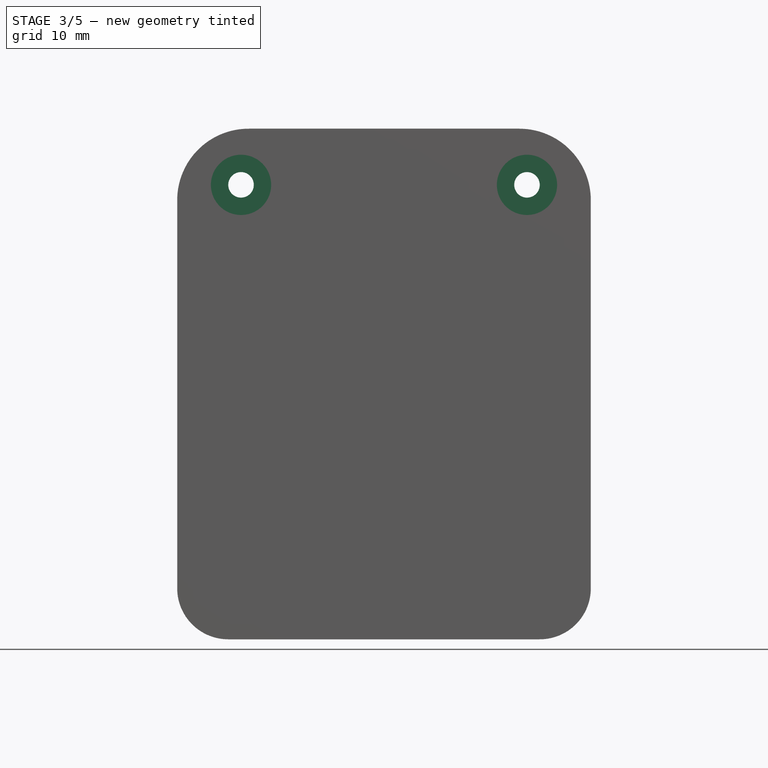
[diagram: stage 3 of 5 — front view after this stage's code; geometry added in this stage tinted green]
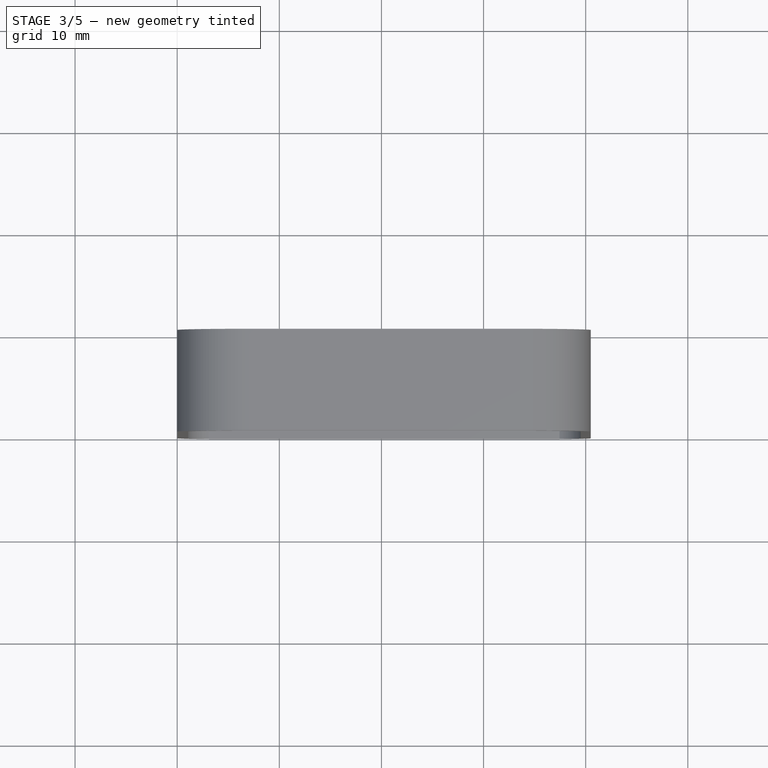
[diagram: stage 3 of 5 — top view after this stage's code; geometry added in this stage tinted green]
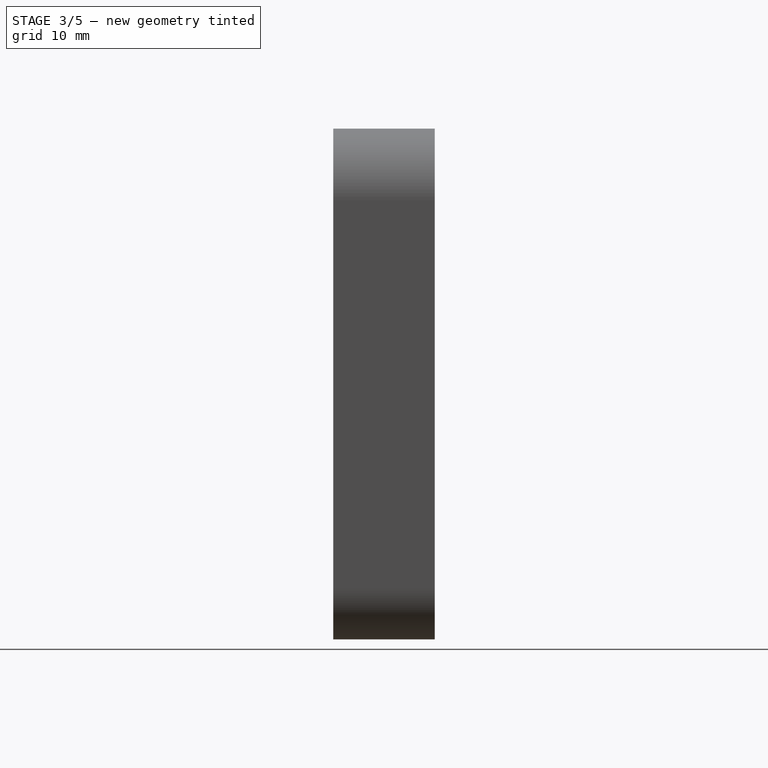
[diagram: stage 3 of 5 — right view after this stage's code; geometry added in this stage tinted green]
FEATURE [Sketcher::SketchObject] Sketch015
  ExternalGeometry = -> [Pad011]
  MapMode = 5
  Placement = pos=(0,-1.2,9e-16) rot=(1,0,0;1.5708rad)
  Support = -> [Pad011]
  sketch-geometry (2):
    g0: Circle CenterX=6.25 CenterY=44.5 CenterZ=0 NormalX=0 NormalY=0 NormalZ=1 AngleXU=0 Radius=2.95
    g1: Circle CenterX=34.25 CenterY=44.5 CenterZ=0 NormalX=0 NormalY=0 NormalZ=1 AngleXU=0 Radius=2.95
  constraints (6):
    c: Radius(g0) = 2.95
    c: Radius(g1) = 2.95
    c: DistanceX(g-3,g0) = 4.75
    c: DistanceY(g0,g-4) = 4
    c: DistanceY(g1,g-5) = 4
    c: DistanceX(g1,g-6) = 4.75
FEATURE [PartDesign::Pad] Pad012
  BaseFeature = -> Pad011
  Length = 4
  Length2 = 100
  Placement = pos=(0,0,0) rot=(1,0,0;1.5708rad)
  Profile = -> Sketch015
  Type = 0
FEATURE [Sketcher::SketchObject] Sketch016
  ExternalGeometry = -> [Pad012]
  MapMode = 5
  Placement = pos=(0,1e-16,0) rot=(-1,0,0;1.5708rad)
  Support = -> [Pad012]
  sketch-geometry (2):
    g0: Circle CenterX=34.2776 CenterY=-44.4243 CenterZ=0 NormalX=0 NormalY=0 NormalZ=1 AngleXU=0 Radius=2.2
    g1: Circle CenterX=6.25 CenterY=-44.5 CenterZ=0 NormalX=0 NormalY=0 NormalZ=1 AngleXU=0 Radius=2.2
  constraints (3):
    c: Coincident(g1,g-4)
    c: Radius(g0) = 2.2
    c: Radius(g1) = 2.2
FEATURE [PartDesign::Pocket] Pocket003
  BaseFeature = -> Pad012
  Length = 3.2
  Length2 = 100
  Placement = pos=(0,0,0) rot=(1,0,0;1.5708rad)
  Profile = -> Sketch016
  Type = 0
FEATURE [Sketcher::SketchObject] Sketch017
  ExternalGeometry = -> [Pocket003]
  MapMode = 5
  Placement = pos=(0,-5.2,1.22e-14) rot=(1,0,0;1.5708rad)
  Support = -> [Pocket003]
  sketch-geometry (2):
    g0: Circle CenterX=6.25 CenterY=44.5 CenterZ=0 NormalX=0 NormalY=0 NormalZ=1 AngleXU=0 Radius=1.25
    g1: Circle CenterX=34.25 CenterY=44.5 CenterZ=0 NormalX=0 NormalY=0 NormalZ=1 AngleXU=0 Radius=1.25
  constraints (4):
    c: Coincident(g0,g-3)
    c: Coincident(g1,g-4)
    c: Radius(g0) = 1.25
    c: Radius(g1) = 1.25
FEATURE [PartDesign::Pocket] Pocket004
  BaseFeature = -> Pocket003
  Length = 2
  Length2 = 100
  Placement = pos=(0,0,0) rot=(1,0,0;1.5708rad)
  Profile = -> Sketch017
  Type = 0
FEATURE [Sketcher::SketchObject] Sketch018
  ExternalGeometry = -> [Pocket004]
  MapMode = 5
  Placement = pos=(1,0,0) rot=(0.707107,0,0.707107;3.14159rad)
  Support = -> [Pocket004]
  sketch-geometry (8):
    g0: LineSegment StartX=9 StartY=8.35 StartZ=0 EndX=12 EndY=8.35 EndZ=0
    g1: LineSegment StartX=12 StartY=8.35 StartZ=0 EndX=12 EndY=8.9 EndZ=0
    g2: LineSegment StartX=12 StartY=8.9 StartZ=0 EndX=9 EndY=8.9 EndZ=0
    g3: LineSegment StartX=9 StartY=8.9 StartZ=0 EndX=9 EndY=8.35 EndZ=0
    g4: LineSegment StartX=26 StartY=8.35 StartZ=0 EndX=29 EndY=8.35 EndZ=0
    g5: LineSegment StartX=29 StartY=8.35 StartZ=0 EndX=29 EndY=8.9 EndZ=0
    g6: LineSegment StartX=29 StartY=8.9 StartZ=0 EndX=26 EndY=8.9 EndZ=0
    g7: LineSegment StartX=26 StartY=8.9 StartZ=0 EndX=26 EndY=8.35 EndZ=0
  constraints (24):
    c: Coincident(g0,g1)
    c: Coincident(g1,g2)
    c: Coincident(g2,g3)
    c: Coincident(g3,g0)
    c: Horizontal(g0)
    c: Horizontal(g2)
    c: Vertical(g1)
    c: Vertical(g3)
    c: PointOnObject(g0,g-4)
    c: Coincident(g4,g5)
    c: Coincident(g5,g6)
    c: Coincident(g6,g7)
    c: Coincident(g7,g4)
    c: Horizontal(g4)
    c: Horizontal(g6)
    c: Vertical(g5)
    c: Vertical(g7)
    c: PointOnObject(g4,g-4)
    c: DistanceX(g2,g2) = 3
    c: DistanceX(g6,g6) = 3
    c: DistanceY(g1,g1) = 0.55
    c: DistanceY(g5,g5) = 0.55
    c: DistanceX(g-4,g0) = 4
    c: DistanceX(g-4,g4) = 21
FEATURE [PartDesign::Pocket] Pocket005
  BaseFeature = -> Pocket004
  Length = 0.3
  Length2 = 100
  Placement = pos=(0,0,0) rot=(1,0,0;1.5708rad)
  Profile = -> Sketch018
  Type = 0
FEATURE [Sketcher::SketchObject] Sketch019
  ExternalGeometry = -> [Pocket005]
  MapMode = 5
  Placement = pos=(39.5,0,0) rot=(0.707107,0,-0.707107;3.14159rad)
  Support = -> [Pocket005]
  sketch-geometry (8):
    g0: LineSegment StartX=-9 StartY=8.35 StartZ=0 EndX=-12 EndY=8.35 EndZ=0
    g1: LineSegment StartX=-12 StartY=8.35 StartZ=0 EndX=-12 EndY=8.9 EndZ=0
    g2: LineSegment StartX=-12 StartY=8.9 StartZ=0 EndX=-9 EndY=8.9 EndZ=0
    g3: LineSegment StartX=-9 StartY=8.9 StartZ=0 EndX=-9 EndY=8.35 EndZ=0
    g4: LineSegment StartX=-26 StartY=8.35 StartZ=0 EndX=-29 EndY=8.35 EndZ=0
    g5: LineSegment StartX=-29 StartY=8.35 StartZ=0 EndX=-29 EndY=8.9 EndZ=0
    g6: LineSegment StartX=-29 StartY=8.9 StartZ=0 EndX=-26 EndY=8.9 EndZ=0
    g7: LineSegment StartX=-26 StartY=8.9 StartZ=0 EndX=-26 EndY=8.35 EndZ=0
  constraints (24):
    c: Coincident(g0,g1)
    c: Coincident(g1,g2)
    c: Coincident(g2,g3)
    c: Coincident(g3,g0)
    c: Horizontal(g0)
    c: Horizontal(g2)
    c: Vertical(g1)
    c: Vertical(g3)
    c: PointOnObject(g0,g-3)
    c: Coincident(g4,g5)
    c: Coincident(g5,g6)
    c: Coincident(g6,g7)
    c: Coincident(g7,g4)
    c: Horizontal(g4)
    c: Horizontal(g6)
    c: Vertical(g5)
    c: Vertical(g7)
    c: PointOnObject(g4,g-3)
    c: DistanceX(g2,g2) = 3
    c: DistanceX(g6,g6) = 3
    c: DistanceX(g0,g-4) = 4
    c: DistanceX(g4,g-4) = 21
    c: DistanceY(g1,g1) = 0.55
    c: DistanceY(g5,g5) = 0.55
FEATURE [PartDesign::Pocket] Pocket006
  BaseFeature = -> Pocket005
  Length = 0.3
  Length2 = 100
  Placement = pos=(0,0,0) rot=(1,0,0;1.5708rad)
  Profile = -> Sketch019
  Type = 0
FEATURE [Sketcher::SketchObject] Sketch020
  ExternalGeometry = -> [Pocket006]
  MapMode = 5
  Placement = pos=(0,0,0) rot=(1,0,0;3.14159rad)
  Support = -> [Pocket006]
  sketch-geometry (4):
    g0: LineSegment StartX=6.2 StartY=6.8 StartZ=0 EndX=19.2 EndY=6.8 EndZ=0
    g1: LineSegment StartX=19.2 StartY=6.8 StartZ=0 EndX=19.2 EndY=4.3 EndZ=0
    g2: LineSegment StartX=19.2 StartY=4.3 StartZ=0 EndX=6.2 EndY=4.3 EndZ=0
    g3: LineSegment StartX=6.2 StartY=4.3 StartZ=0 EndX=6.2 EndY=6.8 EndZ=0
  constraints (12):
    c: Coincident(g0,g1)
    c: Coincident(g1,g2)
    c: Coincident(g2,g3)
    c: Coincident(g3,g0)
    c: Horizontal(g0)
    c: Horizontal(g2)
    c: Vertical(g1)
    c: Vertical(g3)
    c: DistanceX(g2,g2) = 13
    c: DistanceX(g-1,g2) = 6.2
    c: DistanceY(g1,g1) = 2.5
    c: DistanceY(g0,g-3) = 3.15
FEATURE [PartDesign::Pocket] Pocket007
  BaseFeature = -> Pocket006
  Length = 1.5
  Length2 = 100
  Placement = pos=(0,0,0) rot=(1,0,0;1.5708rad)
  Profile = -> Sketch020
  Type = 0
FEATURE [Sketcher::SketchObject] Sketch021
  ExternalGeometry = -> [Pocket007]
  MapMode = 5
  Placement = pos=(0,0,0) rot=(1,0,0;3.14159rad)
  Support = -> [Pocket007]
  sketch-geometry (12):
    g0: LineSegment StartX=22.9345 StartY=6.65 StartZ=0 EndX=27.3655 EndY=6.65 EndZ=0
    g1: LineSegment StartX=29.45 StartY=4.56554 StartZ=0 EndX=29.45 EndY=3.99554 EndZ=0
    g2: LineSegment StartX=28.62 StartY=3.16554 StartZ=0 EndX=21.68 EndY=3.16554 EndZ=0
    g3: LineSegment StartX=20.85 StartY=3.99554 StartZ=0 EndX=20.85 EndY=4.56554 EndZ=0
    g4: ArcOfCircle CenterX=21.68 CenterY=3.99554 CenterZ=0 NormalX=0 NormalY=0 NormalZ=1 AngleXU=0 Radius=0.83 StartAngle=3.14159 EndAngle=4.71239
    g5: ArcOfCircle CenterX=28.62 CenterY=3.99554 CenterZ=0 NormalX=0 NormalY=0 NormalZ=1 AngleXU=0 Radius=0.83 StartAngle=4.71239 EndAngle=6.28319
    g6: LineSegment StartX=21.0111 StartY=4.95445 StartZ=0 EndX=22.5455 EndY=6.48891 EndZ=0
    g7: LineSegment StartX=29.2889 StartY=4.95445 StartZ=0 EndX=27.7545 EndY=6.48891 EndZ=0
    g8: ArcOfCircle CenterX=22.9345 CenterY=6.1 CenterZ=0 NormalX=0 NormalY=0 NormalZ=1 AngleXU=0 Radius=0.55 StartAngle=1.5708 EndAngle=2.35619
    g9: ArcOfCircle CenterX=27.3655 CenterY=6.1 CenterZ=0 NormalX=0 NormalY=0 NormalZ=1 AngleXU=0 Radius=0.55 StartAngle=0.785398 EndAngle=1.5708
    g10: ArcOfCircle CenterX=21.4 CenterY=4.56554 CenterZ=0 NormalX=0 NormalY=0 NormalZ=1 AngleXU=0 Radius=0.55 StartAngle=2.35619 EndAngle=3.14159
    g11: ArcOfCircle CenterX=28.9 CenterY=4.56554 CenterZ=0 NormalX=0 NormalY=0 NormalZ=1 AngleXU=0 Radius=0.55 StartAngle=0 EndAngle=0.785398
  constraints (29):
    c: Horizontal(g0)
    c: Horizontal(g2)
    c: Vertical(g1)
    c: Vertical(g3)
    c: Tangent(g3,g4) = 1.5708
    c: Tangent(g2,g4) = 1.5708
    c: Tangent(g2,g5) = 1.5708
    c: Tangent(g1,g5) = 1.5708
    c: Radius(g4) = 0.83
    c: Radius(g5) = 0.83
    c: Angle(g6,g3) = 0.785398
    c: Angle(g1,g7) = 0.785398
    c: DistanceX(g3,g1) = 8.6
    c: DistanceX(g1,g-4) = 6.05
    c: Tangent(g6,g8) = 1.5708
    c: Tangent(g0,g8) = 1.5708
    c: Tangent(g0,g9) = 1.5708
    c: Tangent(g7,g9) = -1.5708
    c: Tangent(g3,g10) = 1.5708
    c: Tangent(g6,g10) = 1.5708
    c: Tangent(g1,g11) = 1.5708
    c: Tangent(g7,g11) = -1.5708
    c: Radius(g8) = 0.55
    c: Radius(g10) = 0.55
    c: Radius(g11) = 0.55
    c: Radius(g9) = 0.55
    c: DistanceY(g0,g-4) = 3.3
    c: DistanceY(g2,g3) = 1.4
    c: DistanceY(g2,g1) = 1.4
FEATURE [PartDesign::Pocket] Pocket008
  BaseFeature = -> Pocket007
  Length = 1.5
  Length2 = 100
  Placement = pos=(0,0,0) rot=(1,0,0;1.5708rad)
  Profile = -> Sketch021
  Type = 0
FEATURE [PartDesign::Fillet] Fillet
  Base = -> Pocket008 [Edge288,Edge285,Edge303,Edge306]
  BaseFeature = -> Pocket008
  Placement = pos=(0,0,0) rot=(1,0,0;1.5708rad)
  Radius = 0.75
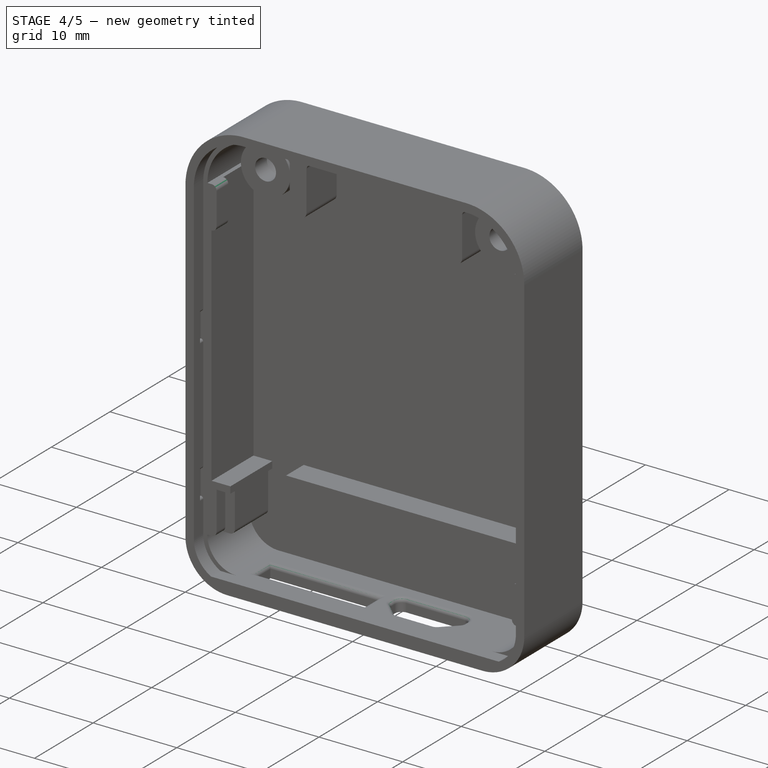
[diagram: stage 4 of 5 — iso view after this stage's code; geometry added in this stage tinted green]
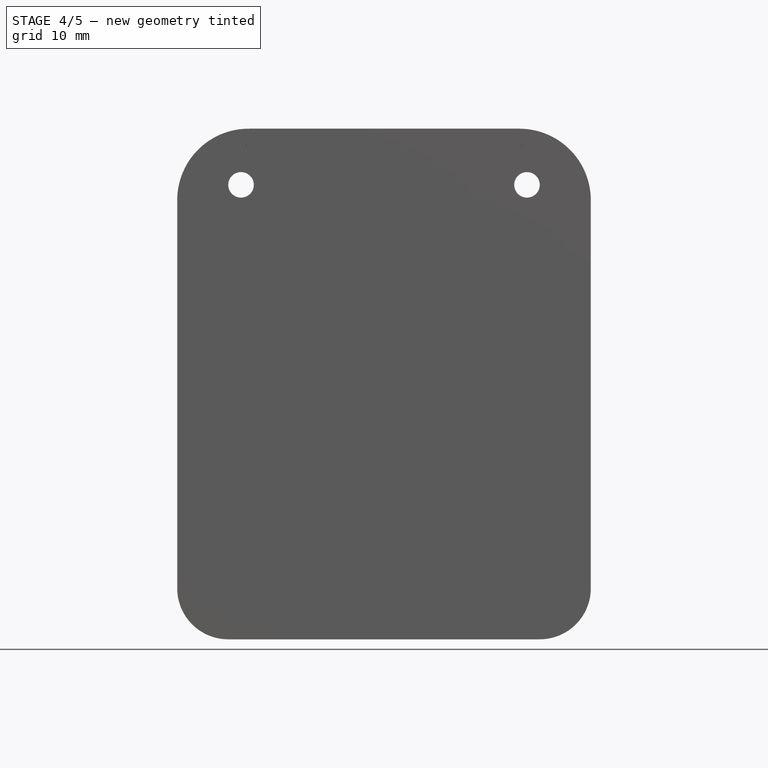
[diagram: stage 4 of 5 — front view after this stage's code; geometry added in this stage tinted green]
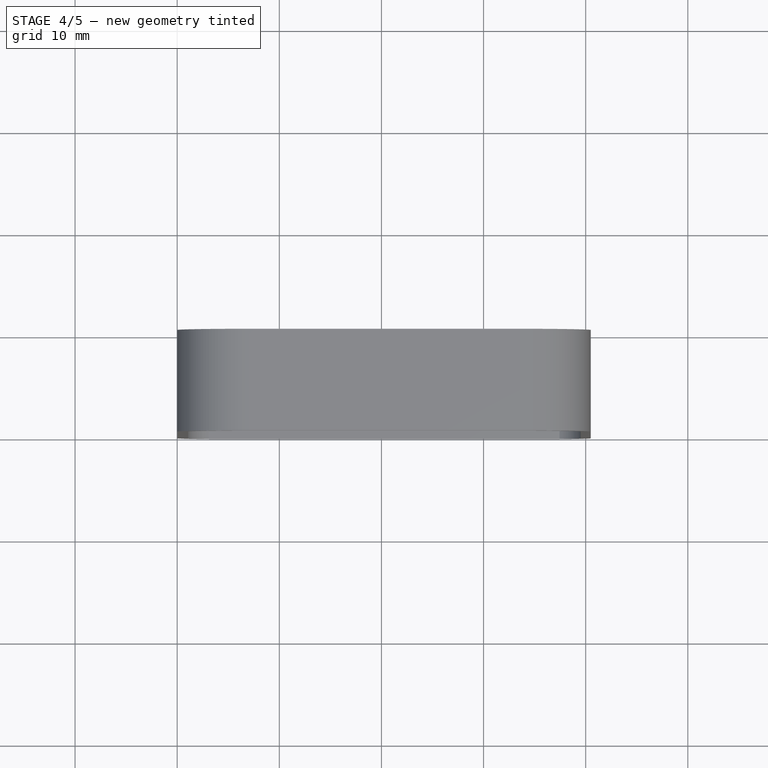
[diagram: stage 4 of 5 — top view after this stage's code; geometry added in this stage tinted green]
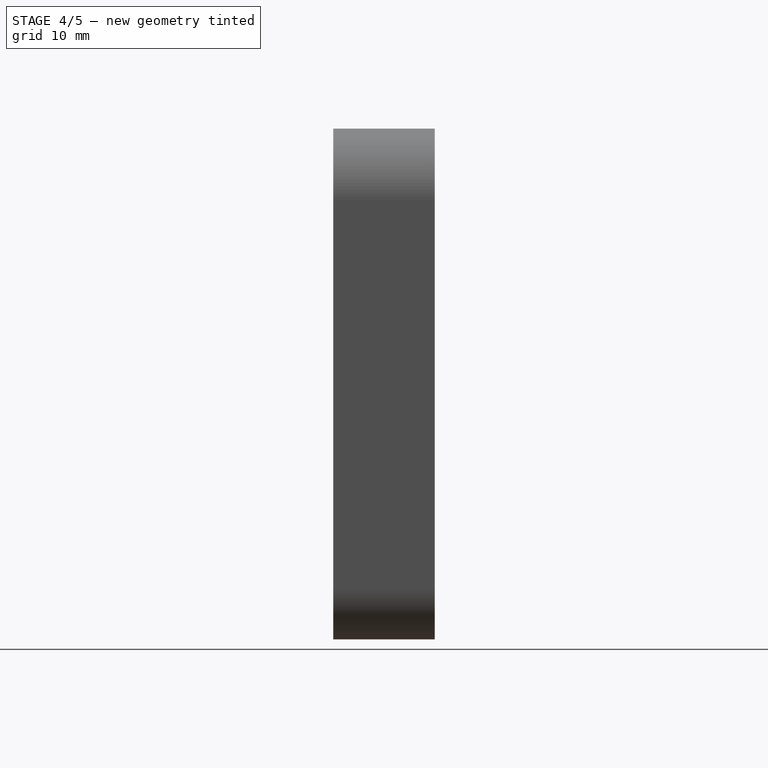
[diagram: stage 4 of 5 — right view after this stage's code; geometry added in this stage tinted green]
FEATURE [PartDesign::Fillet] Fillet001
  Base = -> Fillet [Edge293,Edge291,Edge296,Edge294,Edge324,Edge322,Edge321,Edge319]
  BaseFeature = -> Fillet
  Placement = pos=(0,0,0) rot=(1,0,0;1.5708rad)
  Radius = 0.29
FEATURE [PartDesign::Fillet] Fillet002
  Base = -> Fillet001 [Edge311,Edge310,Edge400,Edge405,Edge346,Edge348,Edge357,Edge354,Edge373,Edge371]
  BaseFeature = -> Fillet001
  Placement = pos=(0,0,0) rot=(1,0,0;1.5708rad)
  Radius = 0.59
FEATURE [PartDesign::Fillet] Fillet003
  Base = -> Fillet002 [Edge171,Edge104,Edge162,Edge158]
  BaseFeature = -> Fillet002
  Placement = pos=(0,0,0) rot=(1,0,0;1.5708rad)
  Radius = 0.75
FEATURE [PartDesign::Fillet] Fillet004
  Base = -> Fillet003 [Edge80,Edge176,Edge103,Edge152]
  BaseFeature = -> Fillet003
  Placement = pos=(0,0,0) rot=(1,0,0;1.5708rad)
  Radius = 0.49
FEATURE [PartDesign::Fillet] Fillet005
  Base = -> Fillet004 [Edge64,Edge177,Edge120,Edge97]
  BaseFeature = -> Fillet004
  Placement = pos=(0,0,0) rot=(1,0,0;1.5708rad)
  Radius = 0.49
FEATURE [PartDesign::Fillet] Fillet006
  Base = -> Fillet005 [Edge71,Edge156]
  BaseFeature = -> Fillet005
  Placement = pos=(0,0,0) rot=(1,0,0;1.5708rad)
  Radius = 0.75
FEATURE [PartDesign::Fillet] Fillet007
  Base = -> Fillet006 [Edge149,Edge151,Edge150,Edge148,Edge155,Edge156,Edge157,Edge158,Edge159,Edge160,Edge161,Edge162,Edge163,Edge152,Edge153,Edge154]
  BaseFeature = -> Fillet006
  Placement = pos=(0,0,0) rot=(1,0,0;1.5708rad)
  Radius = 0.5
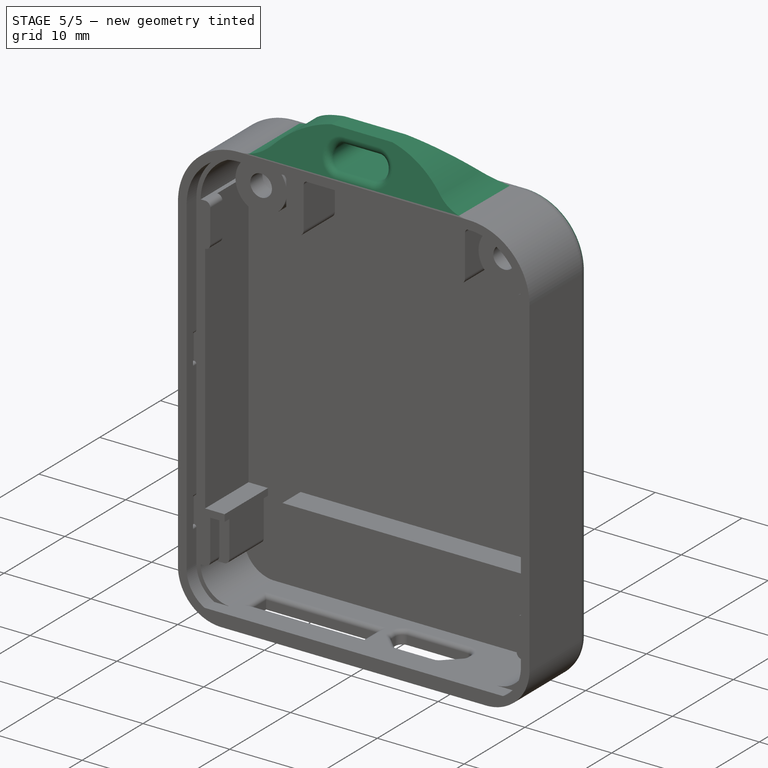
[diagram: stage 5 of 5 — iso view after this stage's code; geometry added in this stage tinted green]
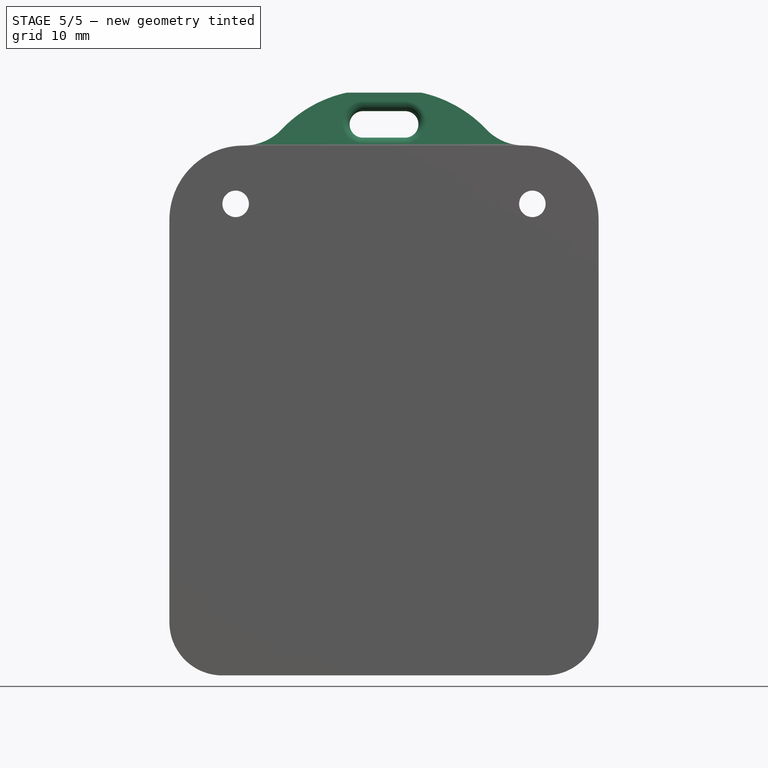
[diagram: stage 5 of 5 — front view after this stage's code; geometry added in this stage tinted green]
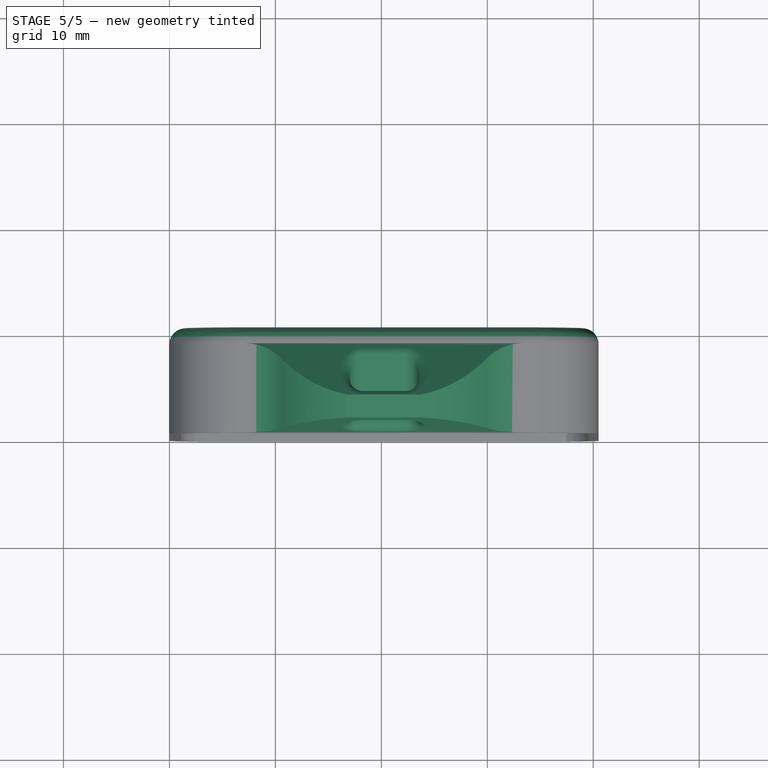
[diagram: stage 5 of 5 — top view after this stage's code; geometry added in this stage tinted green]
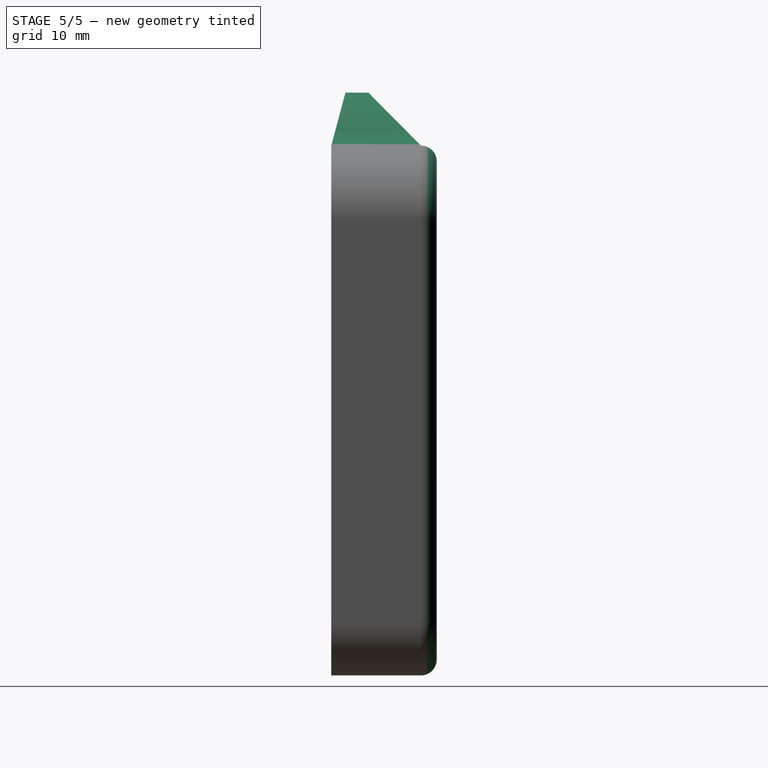
[diagram: stage 5 of 5 — right view after this stage's code; geometry added in this stage tinted green]
FEATURE [Sketcher::SketchObject] Sketch022
  ExternalGeometry = -> [Fillet007]
  MapMode = 5
  Placement = pos=(0,-9.95,2.2e-15) rot=(1,0,0;1.5708rad)
  Support = -> [Fillet007]
  sketch-geometry (4):
    g0: LineSegment StartX=7 StartY=50 StartZ=0 EndX=33.5 EndY=50 EndZ=0
    g1: LineSegment StartX=33.5 StartY=50 StartZ=0 EndX=33.5 EndY=55 EndZ=0
    g2: LineSegment StartX=33.5 StartY=55 StartZ=0 EndX=7 EndY=55 EndZ=0
    g3: LineSegment StartX=7 StartY=55 StartZ=0 EndX=7 EndY=50 EndZ=0
  constraints (11):
    c: Coincident(g0,g1)
    c: Coincident(g1,g2)
    c: Coincident(g2,g3)
    c: Coincident(g3,g0)
    c: Horizontal(g0)
    c: Horizontal(g2)
    c: Vertical(g1)
    c: Vertical(g3)
    c: Coincident(g0,g-3)
    c: DistanceX(g2,g2) = 26.5
    c: DistanceY(g3,g3) = 5
FEATURE [PartDesign::Pad] Pad013
  BaseFeature = -> Fillet007
  Length = 3.5
  Length2 = 100
  Placement = pos=(0,0,0) rot=(1,0,0;1.5708rad)
  Profile = -> Sketch022
  Reversed = true
  Type = 0
FEATURE [Sketcher::SketchObject] Sketch023
  ExternalGeometry = -> [Pad013]
  MapMode = 5
  Placement = pos=(7,0,0) rot=(0.707107,0,-0.707107;3.14159rad)
  Support = -> [Pad013]
  sketch-geometry (3):
    g0: LineSegment StartX=-55 StartY=6.45 StartZ=0 EndX=-50 EndY=6.45 EndZ=0
    g1: LineSegment StartX=-50 StartY=6.45 StartZ=0 EndX=-50 EndY=1.5 EndZ=0
    g2: LineSegment StartX=-50 StartY=1.5 StartZ=0 EndX=-55 EndY=6.45 EndZ=0
  constraints (7):
    c: Coincident(g-3,g0)
    c: Coincident(g0,g-4)
    c: Coincident(g0,g1)
    c: Vertical(g1)
    c: Coincident(g1,g2)
    c: Coincident(g2,g0)
    c: DistanceY(g1,g1) = 4.95
FEATURE [PartDesign::Pad] Pad014
  BaseFeature = -> Pad013
  Length = 26.5
  Length2 = 100
  Placement = pos=(0,0,0) rot=(1,0,0;1.5708rad)
  Profile = -> Sketch023
  Reversed = true
  Type = 0
FEATURE [Sketcher::SketchObject] Sketch024
  ExternalGeometry = -> [Pad014]
  MapMode = 5
  Placement = pos=(0,-9.95,7.1e-15) rot=(1,0,0;1.5708rad)
  Support = -> [Pad014]
  sketch-geometry (4):
    g0: ArcOfCircle CenterX=18.25 CenterY=52 CenterZ=0 NormalX=0 NormalY=0 NormalZ=1 AngleXU=0 Radius=1.25 StartAngle=1.5708 EndAngle=4.71239
    g1: ArcOfCircle CenterX=22.25 CenterY=52 CenterZ=0 NormalX=0 NormalY=0 NormalZ=1 AngleXU=0 Radius=1.25 StartAngle=4.71239 EndAngle=7.85398
    g2: LineSegment StartX=18.25 StartY=50.75 StartZ=0 EndX=22.25 EndY=50.75 EndZ=0
    g3: LineSegment StartX=18.25 StartY=53.25 StartZ=0 EndX=22.25 EndY=53.25 EndZ=0
  constraints (10):
    c: Tangent(g0,g3) = 1.5708
    c: Tangent(g0,g2) = -1.5708
    c: Tangent(g2,g1) = -1.5708
    c: Tangent(g3,g1) = 1.5708
    c: Horizontal(g2)
    c: Equal(g0,g1)
    c: Radius(g1) = 1.25
    c: DistanceX(g0,g1) = 4
    c: DistanceY(g-3,g0) = 2
    c: DistanceX(g-3,g0) = 11.25
FEATURE [PartDesign::Pocket] Pocket009
  BaseFeature = -> Pad014
  Length = 8
  Length2 = 100
  Placement = pos=(0,0,0) rot=(1,0,0;1.5708rad)
  Profile = -> Sketch024
  Type = 1
FEATURE [Sketcher::SketchObject] Sketch025
  ExternalGeometry = -> [Pocket009]
  MapMode = 5
  Placement = pos=(0,-9.95,7.1e-15) rot=(1,0,0;1.5708rad)
  Support = -> [Pocket009]
  sketch-geometry (8):
    g0: ArcOfCircle CenterX=6.99998 CenterY=55 CenterZ=0 NormalX=0 NormalY=0 NormalZ=1 AngleXU=0 Radius=5 StartAngle=4.71239 EndAngle=5.54424
    g1: ArcOfCircle CenterX=19.3078 CenterY=43.2758 CenterZ=0 NormalX=0 NormalY=0 NormalZ=1 AngleXU=0 Radius=12 StartAngle=1.7856 EndAngle=2.37124
    g2: ArcOfCircle CenterX=33.5 CenterY=55 CenterZ=0 NormalX=0 NormalY=0 NormalZ=1 AngleXU=0 Radius=5 StartAngle=3.93608 EndAngle=4.71239
    g3: ArcOfCircle CenterX=21.1959 CenterY=43.275 CenterZ=0 NormalX=0 NormalY=0 NormalZ=1 AngleXU=0 Radius=12 StartAngle=0.74748 EndAngle=1.35632
    g4: LineSegment StartX=16.75 StartY=55 StartZ=0 EndX=7 EndY=55 EndZ=0
    g5: LineSegment StartX=7 StartY=55 StartZ=0 EndX=7 EndY=50 EndZ=0
    g6: LineSegment StartX=33.5 StartY=55 StartZ=0 EndX=33.5 EndY=50 EndZ=0
    g7: LineSegment StartX=23.75 StartY=55 StartZ=0 EndX=33.5 EndY=55 EndZ=0
  constraints (22):
    c: Coincident(g0,g-3)
    c: Radius(g0) = 5
    c: Coincident(g1,g0)
    c: Radius(g1) = 12
    c: Coincident(g2,g-5)
    c: Radius(g2) = 5
    c: Coincident(g3,g2)
    c: Radius(g3) = 12
    c: Coincident(g1,g4)
    c: Coincident(g4,g5)
    c: Coincident(g5,g0)
    c: Vertical(g5)
    c: Coincident(g6,g2)
    c: Vertical(g6)
    c: DistanceY(g6,g6) = 5
    c: DistanceY(g5,g5) = 5
    c: Coincident(g7,g3)
    c: Coincident(g7,g6)
    c: Tangent(g0,g-6)
    c: Tangent(g2,g-6)
    c: DistanceX(g4,g4) = 9.75
    c: DistanceX(g7,g7) = 9.75
FEATURE [PartDesign::Pocket] Pocket010
  BaseFeature = -> Pocket009
  Length = 0
  Length2 = 100
  Placement = pos=(0,0,0) rot=(1,0,0;1.5708rad)
  Profile = -> Sketch025
  Type = 1
FEATURE [Sketcher::SketchObject] Sketch026
  ExternalGeometry = -> [Pocket009]
  MapMode = 5
  Placement = pos=(7,0,0) rot=(0.707107,0,-0.707107;3.14159rad)
  Support = -> [Pocket009]
  sketch-geometry (3):
    g0: LineSegment StartX=-50 StartY=9.95 StartZ=0 EndX=-55 EndY=9.95 EndZ=0
    g1: LineSegment StartX=-55 StartY=9.95 StartZ=0 EndX=-55 EndY=8.61025 EndZ=0
    g2: LineSegment StartX=-55 StartY=8.61025 StartZ=0 EndX=-50 EndY=9.95 EndZ=0
  constraints (7):
    c: Coincident(g0,g-4)
    c: Coincident(g0,g-4)
    c: Coincident(g1,g0)
    c: Vertical(g1)
    c: Coincident(g2,g1)
    c: Coincident(g2,g0)
    c: Angle(g0,g2) = 0.261799
FEATURE [PartDesign::Pocket] Pocket011
  BaseFeature = -> Pocket010
  Length = 26.5
  Length2 = 100
  Placement = pos=(0,0,0) rot=(1,0,0;1.5708rad)
  Profile = -> Sketch026
  Type = 0
FEATURE [PartDesign::Fillet] Fillet008
  Base = -> Pocket011 [Edge419,Edge420,Edge421,Edge418]
  BaseFeature = -> Pocket011
  Placement = pos=(0,0,0) rot=(1,0,0;1.5708rad)
  Radius = 0.75
FEATURE [PartDesign::Fillet] Fillet009
  Base = -> Fillet008 [Edge48,Edge51,Edge54,Edge52]
  BaseFeature = -> Fillet008
  Placement = pos=(0,0,0) rot=(1,0,0;1.5708rad)
  Radius = 1
FEATURE [PartDesign::Fillet] Fillet010
  Base = -> Fillet009 [Edge73,Edge72,Edge71,Edge75,Edge74,Edge68,Edge49,Edge70]
  BaseFeature = -> Fillet009
  Placement = pos=(0,0,0) rot=(1,0,0;1.5708rad)
  Radius = 1.499
FEATURE [PartDesign::Body] Body
  Group = -> [Sketch,Pad,Sketch001,Pocket,Sketch002,Pocket001,Sketch003,Pocket002,Sketch004,Pad001,Sketch005,Pad002,Sketch006,Pad003,Sketch007,Pad004,Sketch008,Pad005,Sketch009,Pad006,Sketch010,Pad007,Sketch011,Pad008,Sketch012,Pad009,Sketch013,Pad010,Sketch014,Pad011,Sketch015,Pad012,Sketch016,Pocket003,Sketch017,Pocket004,Sketch018,Pocket005,Sketch019,Pocket006,Sketch020,Pocket007,Sketch021,Pocket008,Fillet,+20 more]
  Origin = -> Origin
  Placement = pos=(0,0,0) rot=(-1,0,0;1.5708rad)
  Tip = -> Fillet010
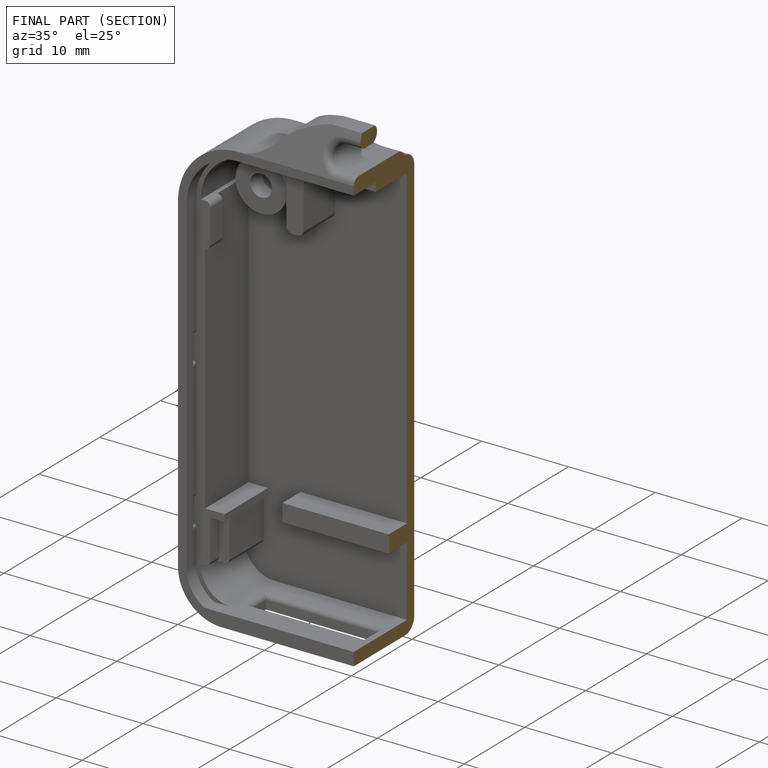
[diagram: finished part — half-section view (interior)]
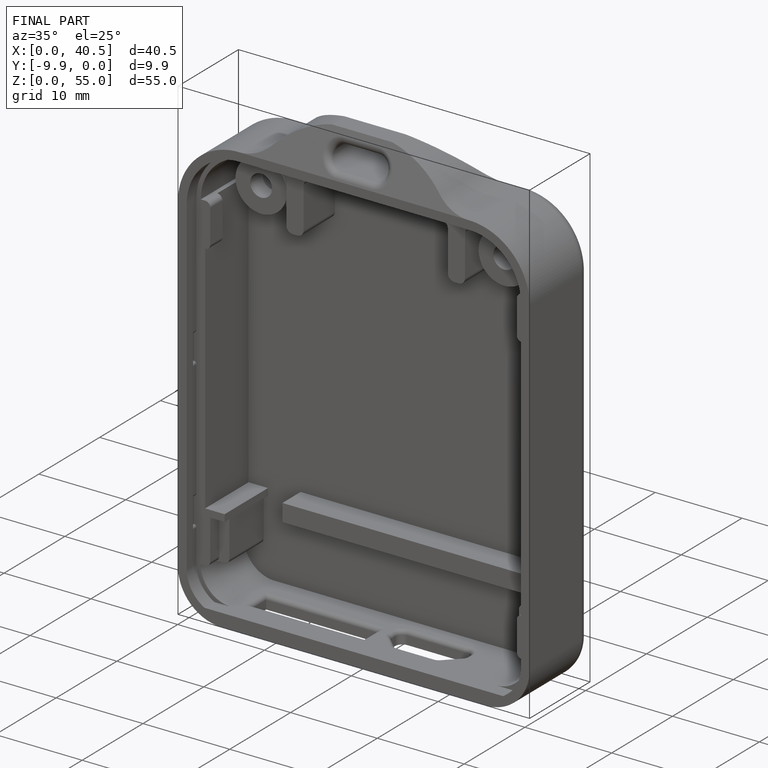
[diagram: finished part — iso view with bounding-box wireframe]
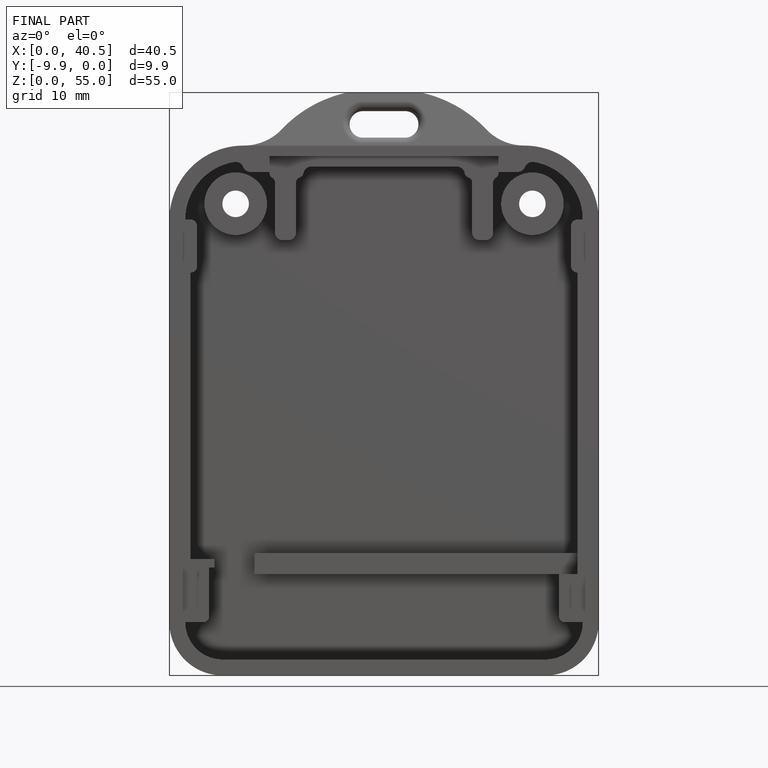
[diagram: finished part — front view with bounding-box wireframe]
